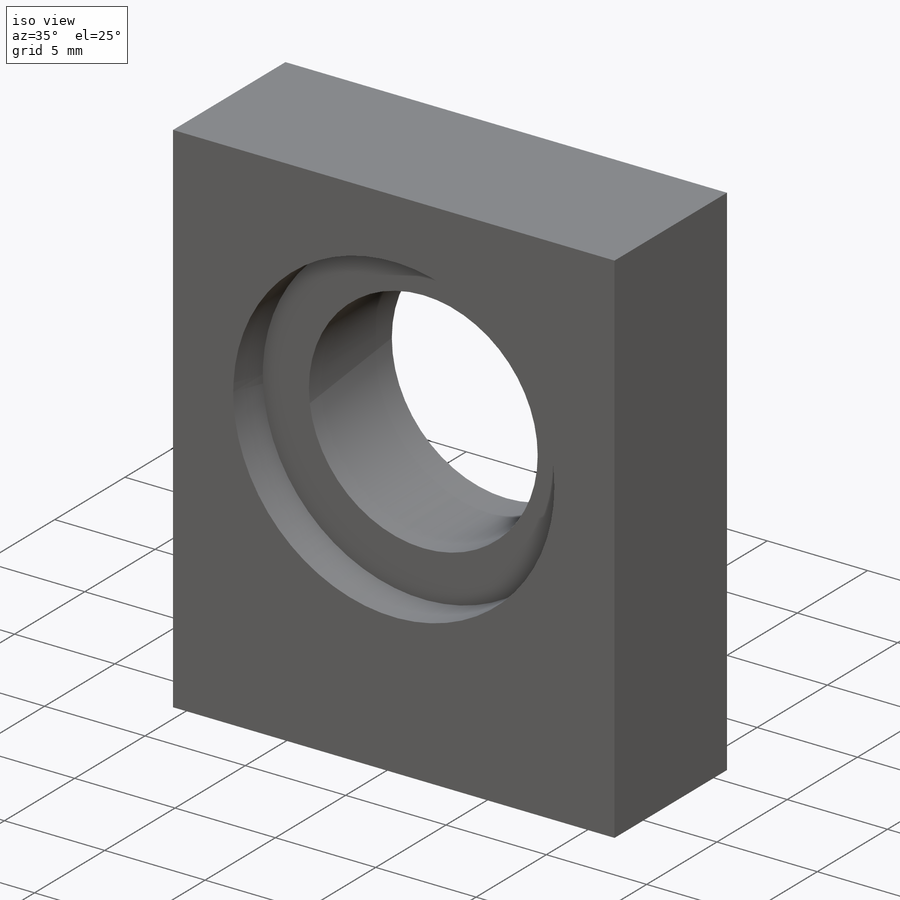
[diagram: iso view]
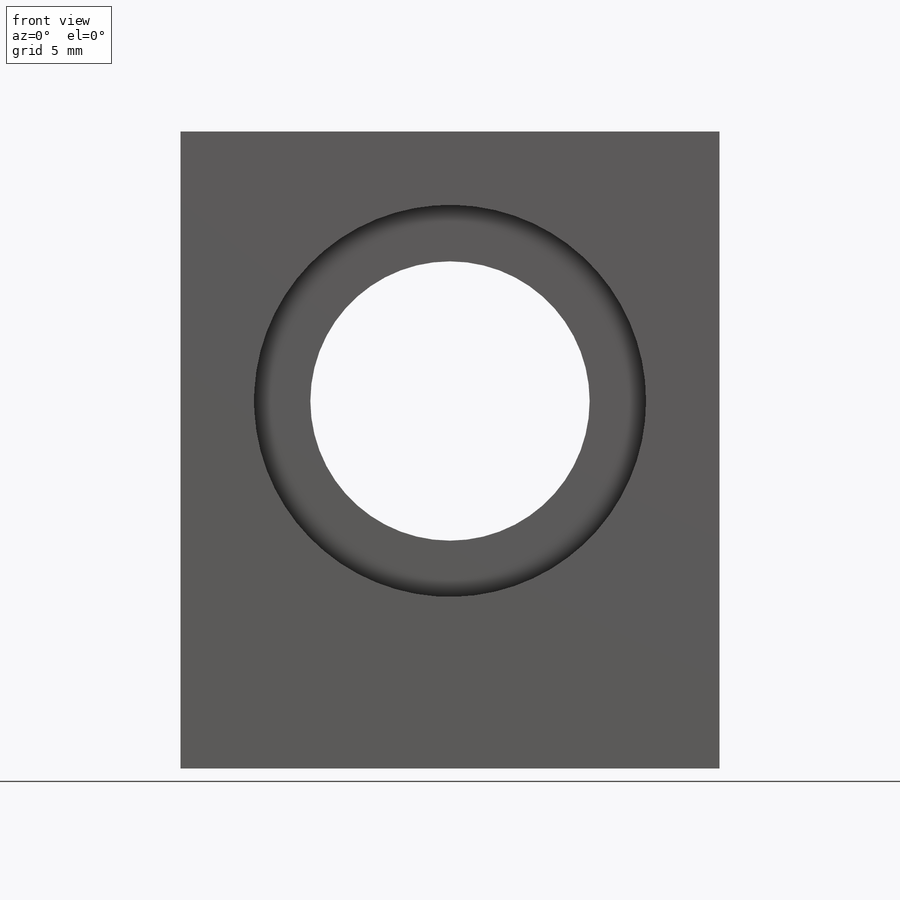
[diagram: front view]
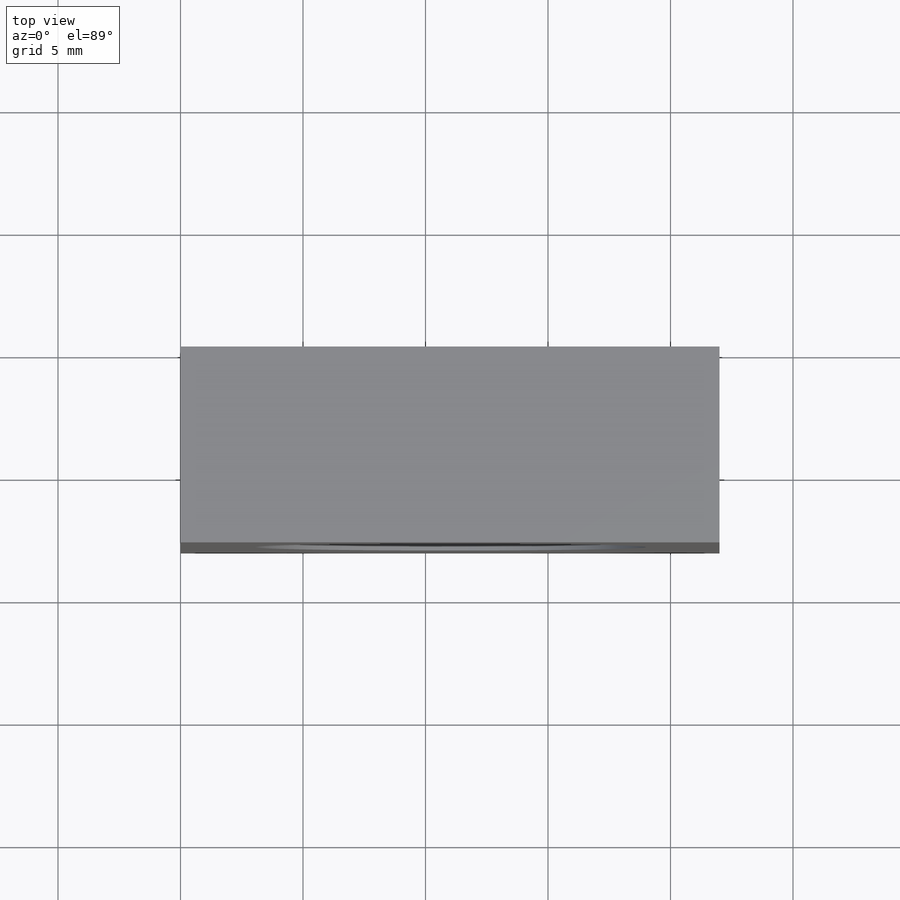
[diagram: top view]
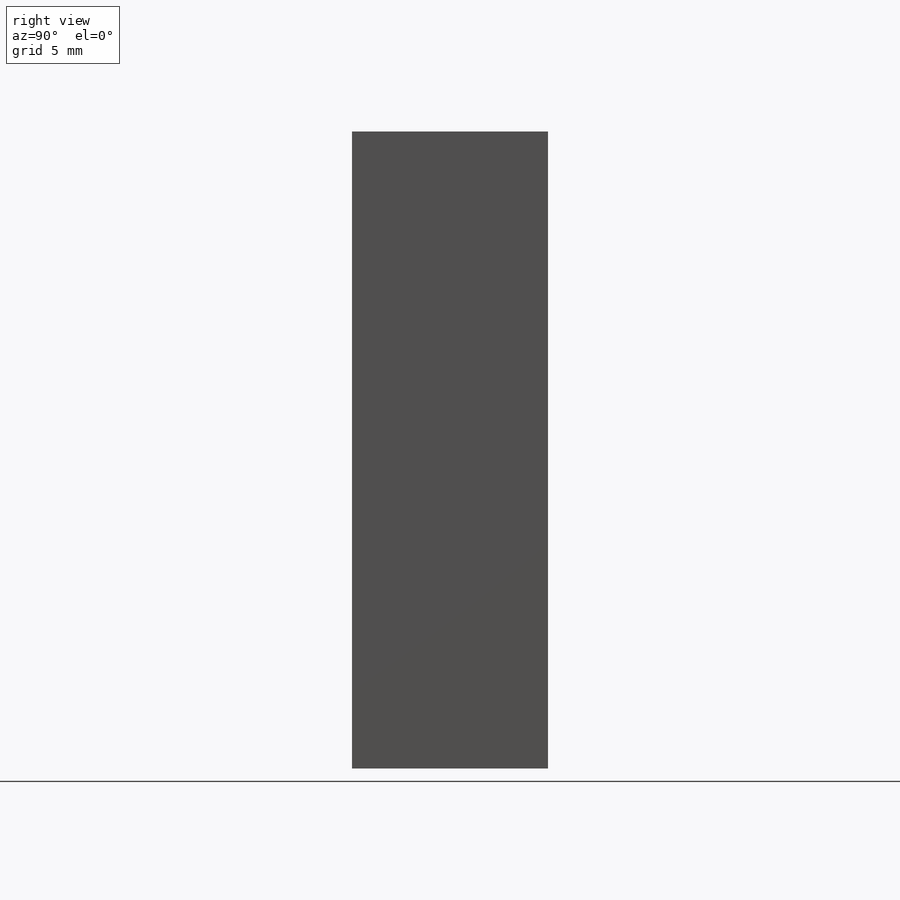
[diagram: right view]
SOLIDWORKS PART (.sldprt)
format: sldprt  version: not decoded by parser v0  size: 223,232 bytes
history: native  units: mm
features: sketch x4, material x1, extrude x1, cut_extrude x1, hole x1 (+11 scaffold rows collapsed)
feature tree (19):
  scaffold x11  (default folders/planes/origin — collapsed)
  material  "Material <not specified>"
  sketch  "Sketch1"  dims[D5=11.4mm D1=22.0mm D2=26.0mm D3=11.0mm D4=15.0mm]
  extrude  "Boss-Extrude1"  Depth=8mm
  sketch  "Sketch3"  dims[D1=16.0mm]
  cut_extrude  "Cut-Extrude2"  Depth=2.1mm
  hole  "Tap Drill for M3x0.5 Tap1"  Diameter=2.5mm Depth=5mm
  sketch  "Sketch5"  dims[c1.D1=1.65mm c1.D2=4.0mm c1.D3=3.0mm c1.D4=2.5mm c1.D5=11.0mm c1.D6=4.0mm c2.D2=4.0mm c2.D3=2.5mm]
  sketch  "Sketch4"  dims[hole-wizard template sketch: 50 standard entries collapsed; hole parameters above]
decode coverage: 7 of 7 modeling features carry decoded parameters
note: ~ marks probable driven/reference dimensions
note: suppression state not decoded; provenance and decode notes live in map.json
